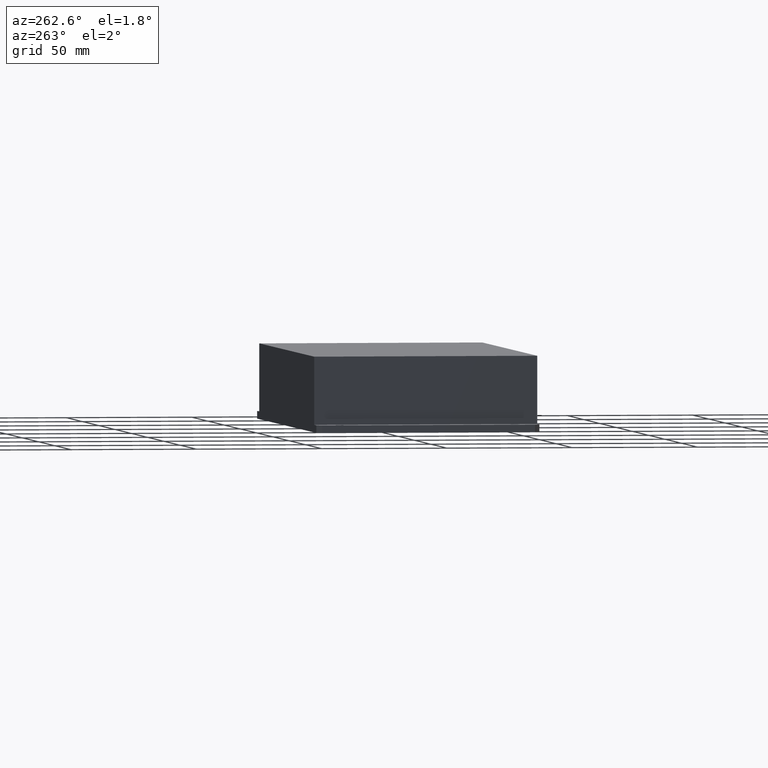
[diagram: clean part render]
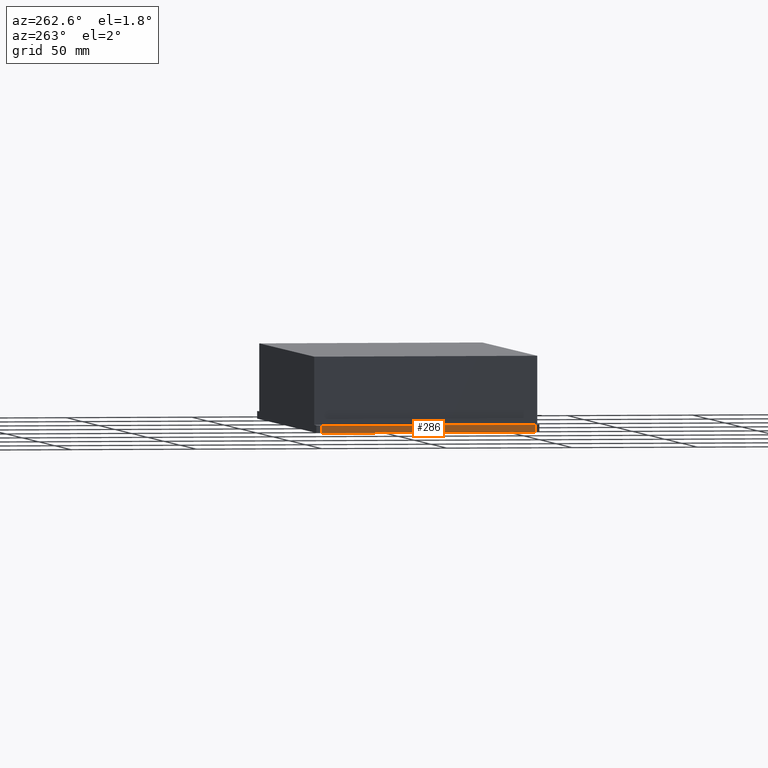
[diagram: same view with one face highlighted and labeled with its STEP entity id]
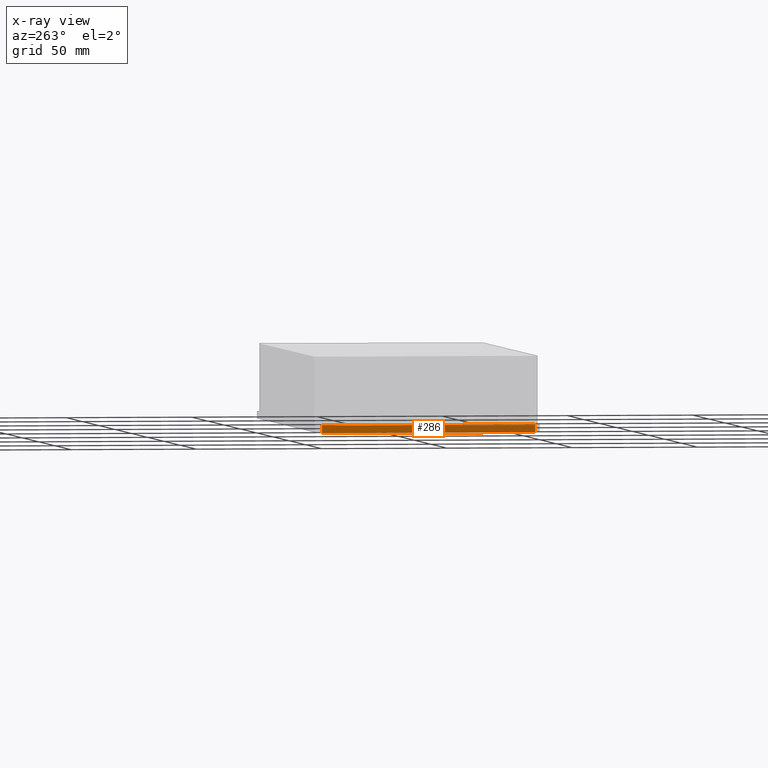
[diagram: x-ray of the same camera — body ghosted, the highlighted face saturated]
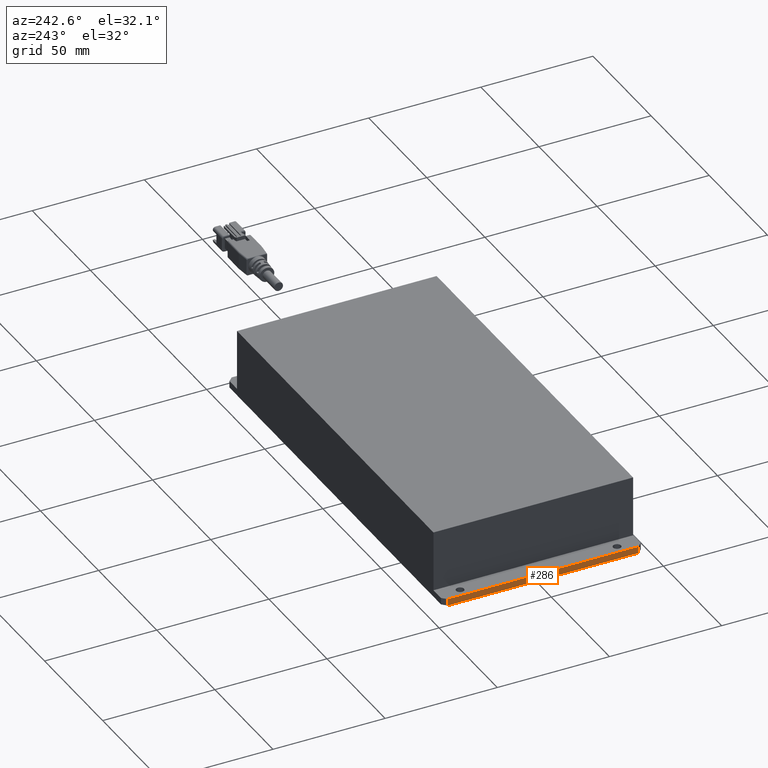
[diagram: same view with one face highlighted and labeled with its STEP entity id]
A machine part, auxiliary view. The second image highlights one B-rep face of the part: STEP entity #286.
The next image is the same camera in x-ray: the body ghosted, the highlighted face saturated — about 0% of this face is hidden behind the body in this view.
A second angle (auxiliary view) of the same face is appended — the face is thin or edge-on in the first view.
In plain terms, the highlighted planar face has unit normal (-1, 0, 0).
Its self-contained STEP definition (entity closure, byte-faithful):
#286=ADVANCED_FACE('12:247769',(#705),#706,.T.);
#705=FACE_OUTER_BOUND('',#1268,.T.);
#706=PLANE('',#1269);
#1268=EDGE_LOOP('',(#2290,#2291,#2292,#2293));
#1269=AXIS2_PLACEMENT_3D('',#2294,#2295,#2296);
#2290=ORIENTED_EDGE('',*,*,#3734,.F.);
#2291=ORIENTED_EDGE('',*,*,#3741,.T.);
#2292=ORIENTED_EDGE('',*,*,#3724,.T.);
#2293=ORIENTED_EDGE('',*,*,#3737,.T.);
#2294=CARTESIAN_POINT('',(-0.093,-0.0445,0.0));
#2295=DIRECTION('',(-1.0,0.0,0.0));
#2296=DIRECTION('',(0.0,0.0,1.0));
#3724=EDGE_CURVE('12:247904',#4359,#4357,#4360,.F.);
#3734=EDGE_CURVE('12:247886',#4375,#4377,#4378,.F.);
#3737=EDGE_CURVE('12:247868',#4357,#4377,#4381,.T.);
#3741=EDGE_CURVE('12:247862',#4375,#4359,#4385,.T.);
#4357=VERTEX_POINT('',#5272);
#4359=VERTEX_POINT('',#5275);
#4360=LINE('',#5276,#5277);
#4375=VERTEX_POINT('',#5297);
#4377=VERTEX_POINT('',#5300);
#4378=LINE('',#5301,#5302);
#4381=LINE('',#5306,#5307);
#4385=LINE('',#5313,#5314);
#5272=CARTESIAN_POINT('',(-0.093,-0.0425,0.0));
#5275=CARTESIAN_POINT('',(-0.093,0.0425,0.0));
#5276=CARTESIAN_POINT('',(-0.093,-0.0445,0.0));
#5277=VECTOR('',#6594,1.0);
#5297=CARTESIAN_POINT('',(-0.093,0.0425,0.003));
#5300=CARTESIAN_POINT('',(-0.093,-0.0425,0.003));
#5301=CARTESIAN_POINT('',(-0.093,-0.0445,0.003));
#5302=VECTOR('',#6607,1.0);
#5306=CARTESIAN_POINT('',(-0.093,-0.0425,0.0));
#5307=VECTOR('',#6609,1.0);
#5313=CARTESIAN_POINT('',(-0.093,0.0425,0.0));
#5314=VECTOR('',#6612,1.0);
#6594=DIRECTION('',(0.0,1.0,0.0));
#6607=DIRECTION('',(0.0,1.0,0.0));
#6609=DIRECTION('',(0.0,0.0,1.0));
#6612=DIRECTION('',(0.0,0.0,-1.0));